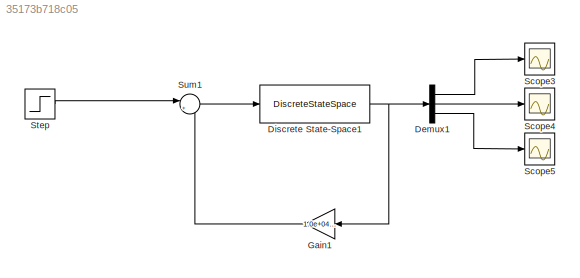
MODEL slx_35173b718c05
KIND model
CONFIG AbsTol = auto
CONFIG EnableMultiTasking = off
CONFIG FixedStep = auto
CONFIG MaxStep = auto
CONFIG MinStep = auto
CONFIG RelTol = 1e-3
CONFIG SampleTimeConstraint = Unconstrained
CONFIG SolverName = VariableStepAuto
CONFIG StartTime = 0.0
CONFIG StopTime = 50
BLOCK [Demux] Demux1
  Outputs = 3
  Ports = [1, 3]
BLOCK [DiscreteStateSpace] Discrete State-Space1
  A = [ 1.000000000000000 -21.150557534772830  -0.000604189555321\n         ;          0   0.882496902584595   0.000048704536076\n          ;         0                   0   0.630232382393690]
  B = [  -0.000088014915701\n ;  0.000011188695469\n ;  0.333725286648294]
  C = [1 0 0; 0 1 0 ; 0 0 1]
  D = [0;0;0]
  InitialCondition = 10
  SampleTime = 5
BLOCK [Gain] Gain1
  Gain = 1.0e+04 *[\n\n   -0.217959452645970  8.571244823702385  0.000408084742073]
  Multiplication = Matrix(K*u)
BLOCK [Scope] Scope3
  Floating = off
  NumInputPorts = 1
  Ports = [1]
  ScopeSpecificationString = Simulink.scopes.TimeScopeBlockCfg('CurrentConfiguration', extmgr.ConfigurationSet(extmgr.Configuration('Core','General UI',true),extmgr.Configuration('Core','Source UI',true),extmgr.Configuration('Sources','WiredSimulink',true,'DataLoggingVariableName','ScopeData1'),extmgr.Configuration('Visuals','Time Domain',true,'SerializedDisplays',{struct('MinYLimReal','-145.23509','MaxYLimReal','27.24834','Y...<+1379ch>
BLOCK [Scope] Scope4
  Floating = off
  NumInputPorts = 1
  Ports = [1]
  ScopeSpecificationString = Simulink.scopes.TimeScopeBlockCfg('CurrentConfiguration', extmgr.ConfigurationSet(extmgr.Configuration('Core','General UI',true),extmgr.Configuration('Core','Source UI',true),extmgr.Configuration('Sources','WiredSimulink',true,'DataLoggingVariableName','ScopeData2'),extmgr.Configuration('Visuals','Time Domain',true,'SerializedDisplays',{struct('MinYLimReal','-5.6715','MaxYLimReal','11.74128','YLab...<+1369ch>
BLOCK [Scope] Scope5
  Floating = off
  NumInputPorts = 1
  Ports = [1]
  ScopeSpecificationString = Simulink.scopes.TimeScopeBlockCfg('CurrentConfiguration', extmgr.ConfigurationSet(extmgr.Configuration('Core','General UI',true),extmgr.Configuration('Core','Source UI',true),extmgr.Configuration('Sources','WiredSimulink',true,'DataLoggingVariableName','ScopeData3'),extmgr.Configuration('Visuals','Time Domain',true,'SerializedDisplays',{struct('MinYLimReal','-329347.04403','MaxYLimReal','176351.01...<+1405ch>
BLOCK [Step] Step
  SampleTime = 0
  Time = 0
BLOCK [Sum] Sum1
  Inputs = |+-
  Ports = [2, 1]
LINE Demux1:1 -> Scope3:1
LINE Demux1:2 -> Scope4:1
LINE Demux1:3 -> Scope5:1
NET Discrete State-Space1:1 -> Demux1:1, Gain1:1
LINE Gain1:1 -> Sum1:2
LINE Step:1 -> Sum1:1
LINE Sum1:1 -> Discrete State-Space1:1
note: NET lines group one-source signal fan-out (src -> all destinations, sorted); 1:1 wires keep LINE
